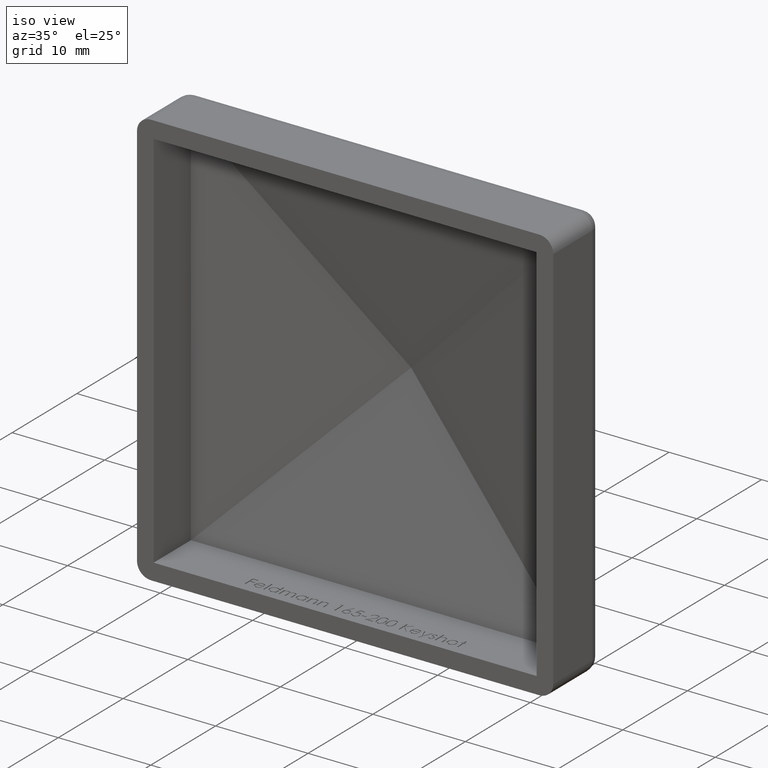
[diagram: clean part render]
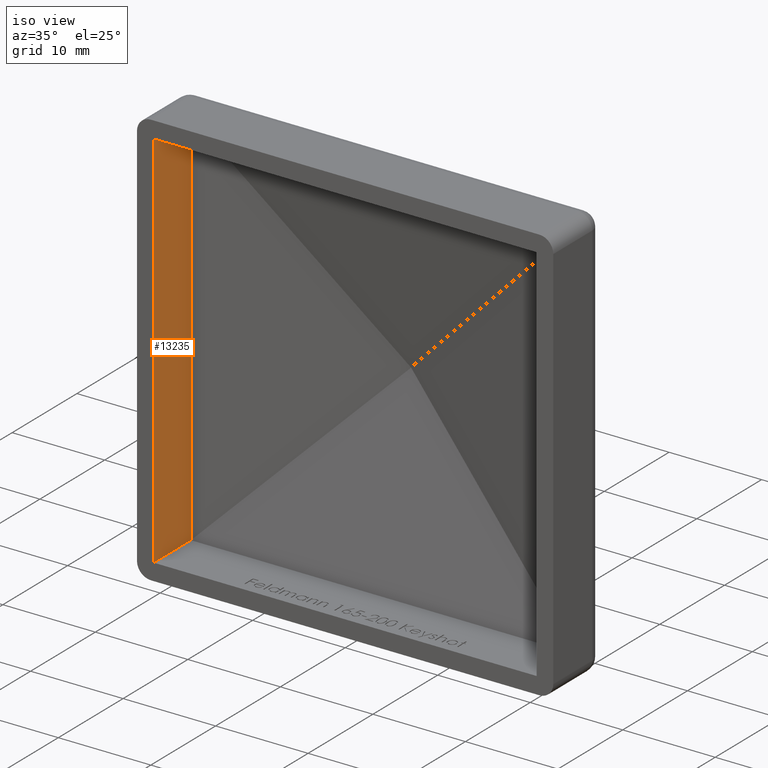
[diagram: same view with one face highlighted and labeled with its STEP entity id]
A machine part, iso view. The second image highlights one B-rep face of the part: STEP entity #13235.
In plain terms, the highlighted planar face has unit normal (1, -0, 0).
Its self-contained STEP definition (entity closure, byte-faithful):
#443 = LINE ( 'NONE', #15459, #15626 ) ;
#531 = VERTEX_POINT ( 'NONE', #13689 ) ;
#553 = FACE_OUTER_BOUND ( 'NONE', #10739, .T. ) ;
#1674 = VECTOR ( 'NONE', #15891, 1000.000000000000000 ) ;
#2157 = ORIENTED_EDGE ( 'NONE', *, *, #4966, .T. ) ;
#3545 = VECTOR ( 'NONE', #7210, 1000.000000000000000 ) ;
#3597 = PLANE ( 'NONE',  #5887 ) ;
#4966 = EDGE_CURVE ( 'NONE', #531, #15442, #10262, .T. ) ;
#5054 = CARTESIAN_POINT ( 'NONE',  ( -20.70000000000000600, 0.0000000000000000000, 20.69999999999997800 ) ) ;
#5887 = AXIS2_PLACEMENT_3D ( 'NONE', #7517, #12648, #13771 ) ;
#7210 = DIRECTION ( 'NONE',  ( 0.0000000000000000000, 1.000000000000000000, 0.0000000000000000000 ) ) ;
#7369 = EDGE_CURVE ( 'NONE', #16516, #531, #443, .T. ) ;
#7399 = CARTESIAN_POINT ( 'NONE',  ( -20.69999999999998200, 5.757475262929799200, 20.70000000000000300 ) ) ;
#7517 = CARTESIAN_POINT ( 'NONE',  ( -20.69999999999997800, 12.00000000000000000, -22.50000000000003600 ) ) ;
#8384 = LINE ( 'NONE', #9660, #12394 ) ;
#8536 = ORIENTED_EDGE ( 'NONE', *, *, #10869, .F. ) ;
#9130 = LINE ( 'NONE', #9751, #3545 ) ;
#9660 = CARTESIAN_POINT ( 'NONE',  ( -20.69999999999997800, 0.0000000000000000000, -22.50000000000003600 ) ) ;
#9751 = CARTESIAN_POINT ( 'NONE',  ( -20.70000000000000600, 12.00000000000000000, 20.69999999999998200 ) ) ;
#9848 = VERTEX_POINT ( 'NONE', #5054 ) ;
#10262 = LINE ( 'NONE', #14336, #1674 ) ;
#10739 = EDGE_LOOP ( 'NONE', ( #8536, #13018, #2157, #16336 ) ) ;
#10849 = DIRECTION ( 'NONE',  ( -6.167905692361978600E-016, 0.0000000000000000000, 1.000000000000000000 ) ) ;
#10869 = EDGE_CURVE ( 'NONE', #16516, #9848, #8384, .T. ) ;
#12394 = VECTOR ( 'NONE', #10849, 1000.000000000000000 ) ;
#12648 = DIRECTION ( 'NONE',  ( 1.000000000000000000, -0.0000000000000000000, 6.167905692361978600E-016 ) ) ;
#13018 = ORIENTED_EDGE ( 'NONE', *, *, #7369, .T. ) ;
#13235 = ADVANCED_FACE ( 'NONE', ( #553 ), #3597, .T. ) ;
#13689 = CARTESIAN_POINT ( 'NONE',  ( -20.70000000000000300, 5.757475262929794700, -20.70000000000001000 ) ) ;
#13771 = DIRECTION ( 'NONE',  ( 6.167905692361978600E-016, 0.0000000000000000000, -1.000000000000000000 ) ) ;
#14186 = DIRECTION ( 'NONE',  ( 0.0000000000000000000, 1.000000000000000000, -0.0000000000000000000 ) ) ;
#14336 = CARTESIAN_POINT ( 'NONE',  ( -20.69999999999997800, 5.757475262929800100, -22.50000000000003600 ) ) ;
#15215 = CARTESIAN_POINT ( 'NONE',  ( -20.69999999999997800, 0.0000000000000000000, -20.70000000000003500 ) ) ;
#15442 = VERTEX_POINT ( 'NONE', #7399 ) ;
#15459 = CARTESIAN_POINT ( 'NONE',  ( -20.69999999999997800, 12.00000000000000000, -20.70000000000003500 ) ) ;
#15626 = VECTOR ( 'NONE', #14186, 1000.000000000000000 ) ;
#15701 = EDGE_CURVE ( 'NONE', #9848, #15442, #9130, .T. ) ;
#15891 = DIRECTION ( 'NONE',  ( -6.167905692361979600E-016, -1.321694076934709900E-016, 1.000000000000000000 ) ) ;
#16336 = ORIENTED_EDGE ( 'NONE', *, *, #15701, .F. ) ;
#16516 = VERTEX_POINT ( 'NONE', #15215 ) ;